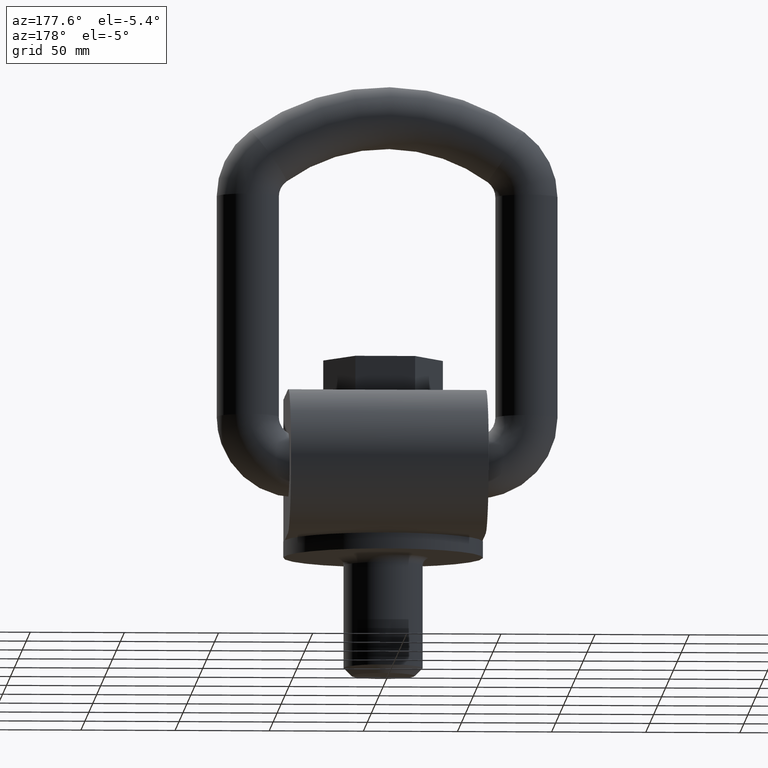
[diagram: clean part render]
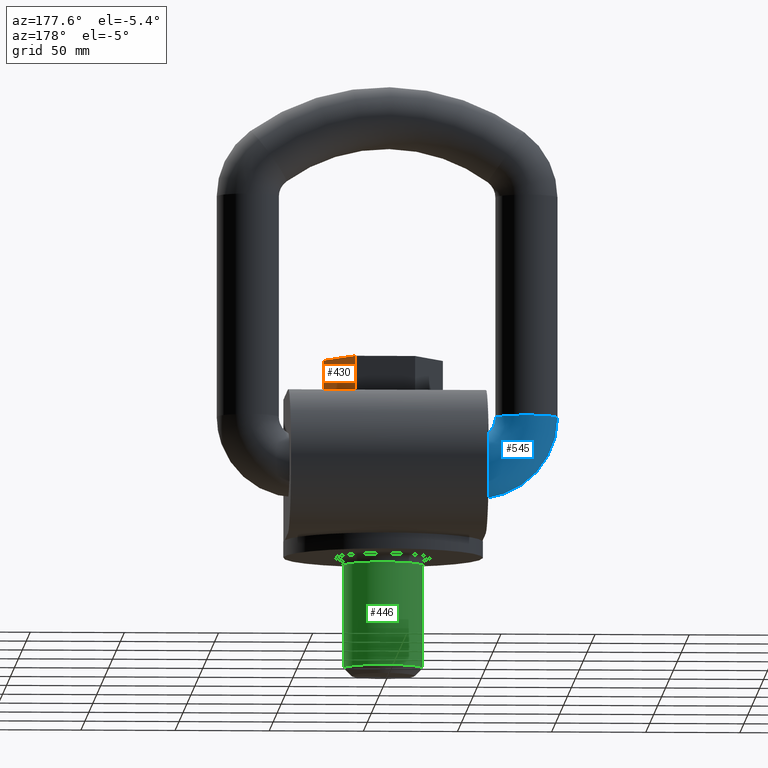
[diagram: same view with three faces highlighted in distinct colors, each labeled with its STEP entity id]
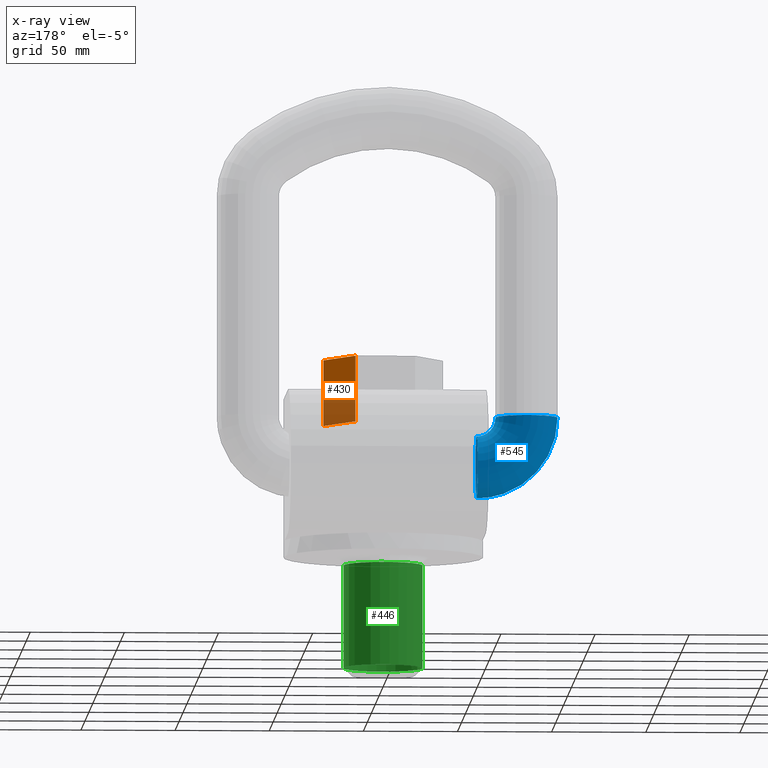
[diagram: x-ray of the same camera — body ghosted, the three highlighted faces saturated]
A machine part, auxiliary view with three faces highlighted in distinct colors.
The next image is the same camera in x-ray (body ghosted, the three faces saturated) — at least one of them is partly hidden behind the body in this view.
Their STEP definitions:

[orange] entity #430 — the highlighted planar face has unit normal (-0.866, -0.5, 0).
#254=PLANE('',#2540);
#317=FACE_OUTER_BOUND('',#663,.T.);
#430=ADVANCED_FACE('',(#317),#254,.F.);
#663=EDGE_LOOP('',(#1282,#1283,#1284,#1285));
#826=LINE('',#3827,#958);
#834=LINE('',#3843,#966);
#836=LINE('',#3847,#968);
#837=LINE('',#3849,#969);
#958=VECTOR('',#2748,1.);
#966=VECTOR('',#2762,1.);
#968=VECTOR('',#2766,1.);
#969=VECTOR('',#2767,1.);
#1282=ORIENTED_EDGE('',*,*,#2095,.T.);
#1283=ORIENTED_EDGE('',*,*,#2105,.F.);
#1284=ORIENTED_EDGE('',*,*,#2106,.F.);
#1285=ORIENTED_EDGE('',*,*,#2103,.T.);
#1873=VERTEX_POINT('',#3826);
#1874=VERTEX_POINT('',#3828);
#1879=VERTEX_POINT('',#3844);
#1880=VERTEX_POINT('',#3848);
#2095=EDGE_CURVE('',#1874,#1873,#826,.T.);
#2103=EDGE_CURVE('',#1879,#1874,#834,.T.);
#2105=EDGE_CURVE('',#1880,#1873,#836,.T.);
#2106=EDGE_CURVE('',#1879,#1880,#837,.T.);
#2540=AXIS2_PLACEMENT_3D('',#3850,#2768,#2769);
#2748=DIRECTION('',(-0.5,0.866025403784438,0.));
#2762=DIRECTION('',(0.,0.,-1.));
#2766=DIRECTION('',(0.,0.,-1.));
#2767=DIRECTION('',(-0.5,0.866025403784438,0.));
#2768=DIRECTION('',(-0.866025403784439,-0.5,0.));
#2769=DIRECTION('',(0.5,-0.866025403784439,0.));
#3826=CARTESIAN_POINT('',(15.8771324027147,27.5,61.5));
#3827=CARTESIAN_POINT('',(31.7542648054294,-2.1316282072803E-14,61.5));
#3828=CARTESIAN_POINT('',(31.7542648054294,-2.08166817117217E-14,61.5));
#3843=CARTESIAN_POINT('',(31.7542648054294,-2.08166817117217E-14,96.5));
#3844=CARTESIAN_POINT('',(31.7542648054294,-2.08166817117217E-14,96.5));
#3847=CARTESIAN_POINT('',(15.8771324027147,27.5,96.5));
#3848=CARTESIAN_POINT('',(15.8771324027147,27.5,96.5));
#3849=CARTESIAN_POINT('',(31.7542648054294,-2.1316282072803E-14,96.5));
#3850=CARTESIAN_POINT('',(31.7542648054294,-2.1316282072803E-14,96.5));

[blue] entity #545 — the highlighted toroidal blend (fillet) surface has major radius 26.5 mm and minor (blend) radius 16.5 mm.
#240=TOROIDAL_SURFACE('',#2623,26.5,16.5);
#545=ADVANCED_FACE('',(#627,#628),#240,.T.);
#627=FACE_BOUND('',#793,.T.);
#628=FACE_BOUND('',#794,.T.);
#793=EDGE_LOOP('',(#1773));
#794=EDGE_LOOP('',(#1774));
#1149=CIRCLE('',#2620,16.5);
#1150=CIRCLE('',#2622,16.5);
#1773=ORIENTED_EDGE('',*,*,#2310,.T.);
#1774=ORIENTED_EDGE('',*,*,#2309,.F.);
#1994=VERTEX_POINT('',#5111);
#1995=VERTEX_POINT('',#5114);
#2309=EDGE_CURVE('',#1994,#1994,#1149,.T.);
#2310=EDGE_CURVE('',#1995,#1995,#1150,.T.);
#2620=AXIS2_PLACEMENT_3D('',#5110,#3072,#3073);
#2622=AXIS2_PLACEMENT_3D('',#5113,#3076,#3077);
#2623=AXIS2_PLACEMENT_3D('',#5115,#3078,#3079);
#3072=DIRECTION('',(1.,0.,-6.71855003501204E-16));
#3073=DIRECTION('',(-8.41078048958452E-16,0.,-1.));
#3076=DIRECTION('',(-1.66533453693773E-16,0.,-1.));
#3077=DIRECTION('',(-1.,0.,0.));
#3078=DIRECTION('',(0.,-1.,0.));
#3079=DIRECTION('',(0.,0.,-1.));
#5110=CARTESIAN_POINT('',(-47.5000000000001,51.,35.));
#5111=CARTESIAN_POINT('',(-47.5000000000001,51.,18.4999999999999));
#5113=CARTESIAN_POINT('',(-74.,51.,61.5));
#5114=CARTESIAN_POINT('',(-90.5,51.,61.5));
#5115=CARTESIAN_POINT('',(-47.5,51.,61.5));

[green] entity #446 — the highlighted cylindrical surface (bore or boss wall) has radius 21 mm, axis along (0, 0, 1).
#446=ADVANCED_FACE('',(#603,#604),#555,.T.);
#555=CYLINDRICAL_SURFACE('',#2563,21.);
#603=FACE_BOUND('',#682,.T.);
#604=FACE_BOUND('',#683,.T.);
#682=EDGE_LOOP('',(#1351));
#683=EDGE_LOOP('',(#1352));
#1143=CIRCLE('',#2561,21.);
#1144=CIRCLE('',#2562,21.);
#1351=ORIENTED_EDGE('',*,*,#2133,.T.);
#1352=ORIENTED_EDGE('',*,*,#2134,.T.);
#1896=VERTEX_POINT('',#3908);
#1897=VERTEX_POINT('',#3910);
#2133=EDGE_CURVE('',#1896,#1896,#1143,.T.);
#2134=EDGE_CURVE('',#1897,#1897,#1144,.T.);
#2561=AXIS2_PLACEMENT_3D('',#3907,#2831,#2832);
#2562=AXIS2_PLACEMENT_3D('',#3909,#2833,#2834);
#2563=AXIS2_PLACEMENT_3D('',#3911,#2835,#2836);
#2831=DIRECTION('',(0.,0.,1.));
#2832=DIRECTION('',(-1.,0.,0.));
#2833=DIRECTION('',(0.,0.,-1.));
#2834=DIRECTION('',(-1.,0.,0.));
#2835=DIRECTION('',(0.,0.,1.));
#2836=DIRECTION('',(1.,0.,0.));
#3907=CARTESIAN_POINT('',(0.,0.,-67.2999999999999));
#3908=CARTESIAN_POINT('',(-21.,0.,-67.2999999999999));
#3909=CARTESIAN_POINT('',(0.,0.,-12.6999999999999));
#3910=CARTESIAN_POINT('',(-21.,0.,-12.6999999999999));
#3911=CARTESIAN_POINT('',(0.,0.,-71.4999999999999));